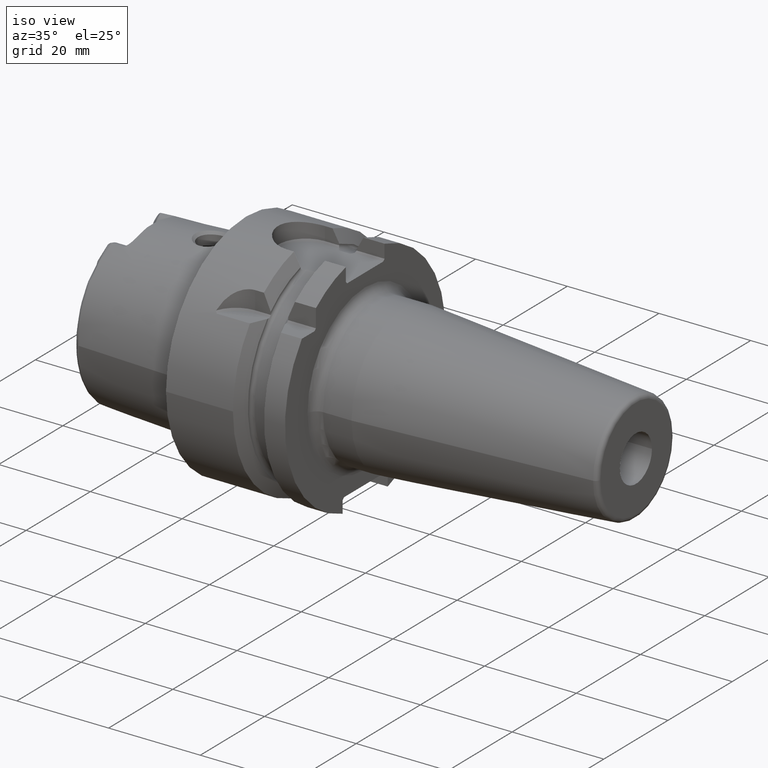
[diagram: clean part render]
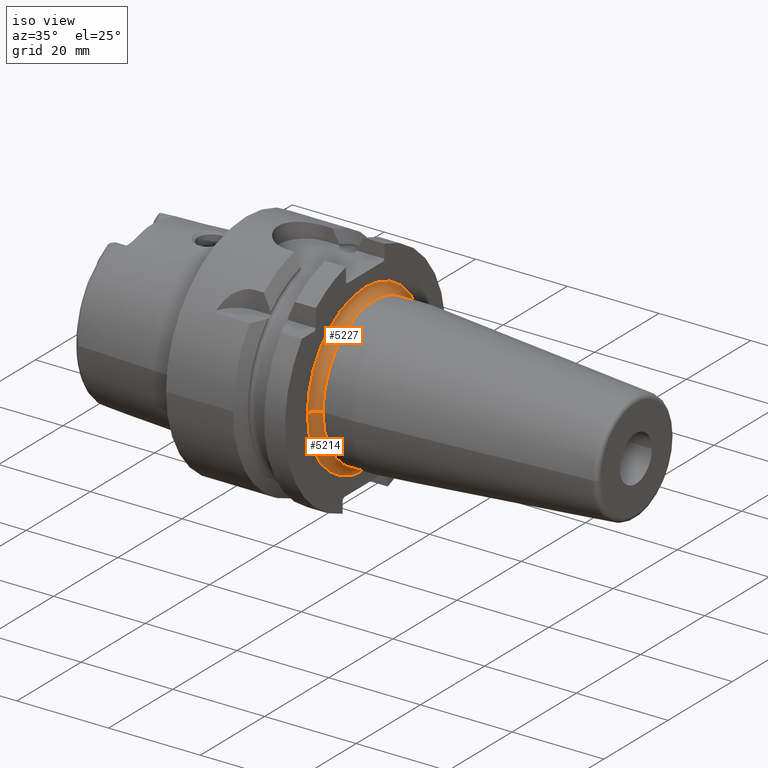
[diagram: same view with one multi-face feature highlighted, each face labeled with its STEP entity id]
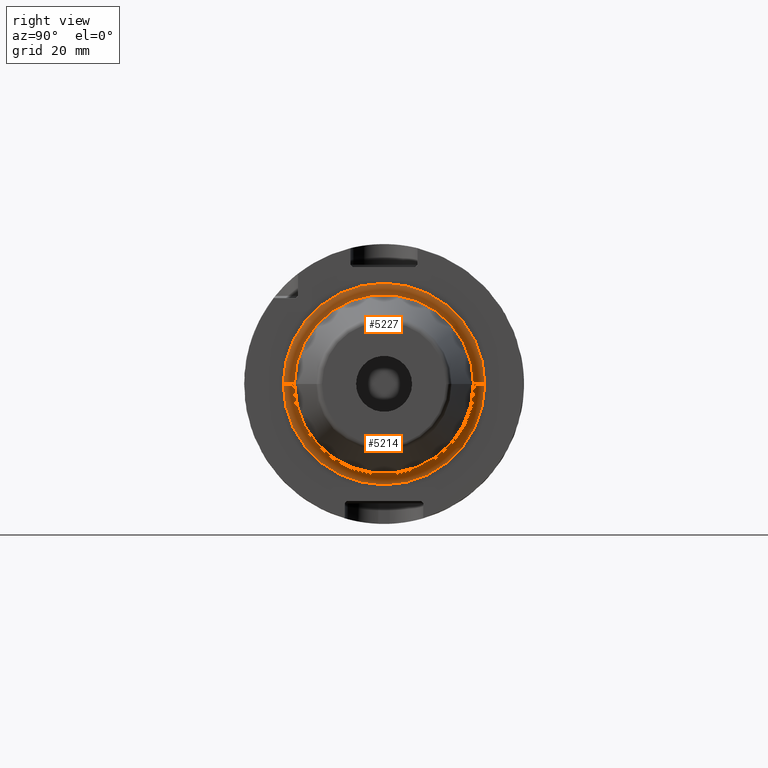
[diagram: same view with one multi-face feature highlighted, each face labeled with its STEP entity id]
A machine part, iso view. The highlighted faces form ONE feature: a constant-radius fillet chain: 2 tangent blend faces with common blend radius 2 mm. The faces share edges in the B-rep.
A second angle (right view) of the same feature is appended — it is thin or edge-on in the first view.
Their STEP definitions:
[1] entity #5214 (Torus):
#1721=CARTESIAN_POINT('',(2.595E1,0.E0,0.E0));
#1722=DIRECTION('',(1.E0,0.E0,0.E0));
#1723=DIRECTION('',(0.E0,-1.E0,0.E0));
#1724=AXIS2_PLACEMENT_3D('',#1721,#1722,#1723);
#1892=CARTESIAN_POINT('',(2.795E1,-1.8E1,1.963845752684E-13));
#1893=DIRECTION('',(0.E0,-1.091054330216E-14,-1.E0));
#1894=DIRECTION('',(-1.E0,2.309263891220E-14,0.E0));
#1895=AXIS2_PLACEMENT_3D('',#1892,#1893,#1894);
#1897=CARTESIAN_POINT('',(2.795E1,1.8E1,-1.982441988346E-13));
#1898=DIRECTION('',(0.E0,1.101375934898E-14,1.E0));
#1899=DIRECTION('',(-1.E0,-2.131628207280E-14,0.E0));
#1900=AXIS2_PLACEMENT_3D('',#1897,#1898,#1899);
#1912=CARTESIAN_POINT('',(2.795E1,0.E0,0.E0));
#1913=DIRECTION('',(1.E0,0.E0,0.E0));
#1914=DIRECTION('',(0.E0,-1.E0,0.E0));
#1915=AXIS2_PLACEMENT_3D('',#1912,#1913,#1914);
#3222=CARTESIAN_POINT('',(2.595E1,-1.8E1,0.E0));
#3223=CARTESIAN_POINT('',(2.595E1,1.8E1,0.E0));
#3224=VERTEX_POINT('',#3222);
#3225=VERTEX_POINT('',#3223);
#3226=CARTESIAN_POINT('',(2.795E1,-1.6E1,0.E0));
#3227=CARTESIAN_POINT('',(2.795E1,1.6E1,0.E0));
#3228=VERTEX_POINT('',#3226);
#3229=VERTEX_POINT('',#3227);
#5200=CARTESIAN_POINT('',(2.795E1,0.E0,0.E0));
#5201=DIRECTION('',(1.E0,0.E0,0.E0));
#5202=DIRECTION('',(0.E0,-9.999884548084E-1,4.805231507475E-3));
#5203=AXIS2_PLACEMENT_3D('',#5200,#5201,#5202);
#5204=TOROIDAL_SURFACE('',#5203,1.8E1,2.E0);
#5205=ORIENTED_EDGE('',*,*,#5032,.F.);
#5207=ORIENTED_EDGE('',*,*,#5206,.T.);
#5209=ORIENTED_EDGE('',*,*,#5208,.T.);
#5211=ORIENTED_EDGE('',*,*,#5210,.F.);
#5212=EDGE_LOOP('',(#5205,#5207,#5209,#5211));
#5213=FACE_OUTER_BOUND('',#5212,.F.);
#5214=ADVANCED_FACE('',(#5213),#5204,.F.);
#1725=CIRCLE('',#1724,1.8E1);
#1896=CIRCLE('',#1895,2.E0);
#1901=CIRCLE('',#1900,2.E0);
#1916=CIRCLE('',#1915,1.6E1);
#5032=EDGE_CURVE('',#3224,#3225,#1725,.T.);
#5206=EDGE_CURVE('',#3224,#3228,#1896,.T.);
#5208=EDGE_CURVE('',#3228,#3229,#1916,.T.);
#5210=EDGE_CURVE('',#3225,#3229,#1901,.T.);
[2] entity #5227 (Torus):
#1726=CARTESIAN_POINT('',(2.595E1,0.E0,0.E0));
#1727=DIRECTION('',(1.E0,0.E0,0.E0));
#1728=DIRECTION('',(0.E0,1.E0,0.E0));
#1729=AXIS2_PLACEMENT_3D('',#1726,#1727,#1728);
#1892=CARTESIAN_POINT('',(2.795E1,-1.8E1,1.963845752684E-13));
#1893=DIRECTION('',(0.E0,-1.091054330216E-14,-1.E0));
#1894=DIRECTION('',(-1.E0,2.309263891220E-14,0.E0));
#1895=AXIS2_PLACEMENT_3D('',#1892,#1893,#1894);
#1897=CARTESIAN_POINT('',(2.795E1,1.8E1,-1.982441988346E-13));
#1898=DIRECTION('',(0.E0,1.101375934898E-14,1.E0));
#1899=DIRECTION('',(-1.E0,-2.131628207280E-14,0.E0));
#1900=AXIS2_PLACEMENT_3D('',#1897,#1898,#1899);
#1902=CARTESIAN_POINT('',(2.795E1,0.E0,0.E0));
#1903=DIRECTION('',(1.E0,0.E0,0.E0));
#1904=DIRECTION('',(0.E0,1.E0,0.E0));
#1905=AXIS2_PLACEMENT_3D('',#1902,#1903,#1904);
#3222=CARTESIAN_POINT('',(2.595E1,-1.8E1,0.E0));
#3223=CARTESIAN_POINT('',(2.595E1,1.8E1,0.E0));
#3224=VERTEX_POINT('',#3222);
#3225=VERTEX_POINT('',#3223);
#3226=CARTESIAN_POINT('',(2.795E1,-1.6E1,0.E0));
#3227=CARTESIAN_POINT('',(2.795E1,1.6E1,0.E0));
#3228=VERTEX_POINT('',#3226);
#3229=VERTEX_POINT('',#3227);
#5215=CARTESIAN_POINT('',(2.795E1,0.E0,0.E0));
#5216=DIRECTION('',(1.E0,0.E0,0.E0));
#5217=DIRECTION('',(0.E0,9.999884548084E-1,-4.805231507475E-3));
#5218=AXIS2_PLACEMENT_3D('',#5215,#5216,#5217);
#5219=TOROIDAL_SURFACE('',#5218,1.8E1,2.E0);
#5220=ORIENTED_EDGE('',*,*,#5034,.F.);
#5221=ORIENTED_EDGE('',*,*,#5210,.T.);
#5223=ORIENTED_EDGE('',*,*,#5222,.T.);
#5224=ORIENTED_EDGE('',*,*,#5206,.F.);
#5225=EDGE_LOOP('',(#5220,#5221,#5223,#5224));
#5226=FACE_OUTER_BOUND('',#5225,.F.);
#5227=ADVANCED_FACE('',(#5226),#5219,.F.);
#1730=CIRCLE('',#1729,1.8E1);
#1896=CIRCLE('',#1895,2.E0);
#1901=CIRCLE('',#1900,2.E0);
#1906=CIRCLE('',#1905,1.6E1);
#5034=EDGE_CURVE('',#3225,#3224,#1730,.T.);
#5206=EDGE_CURVE('',#3224,#3228,#1896,.T.);
#5210=EDGE_CURVE('',#3225,#3229,#1901,.T.);
#5222=EDGE_CURVE('',#3229,#3228,#1906,.T.);